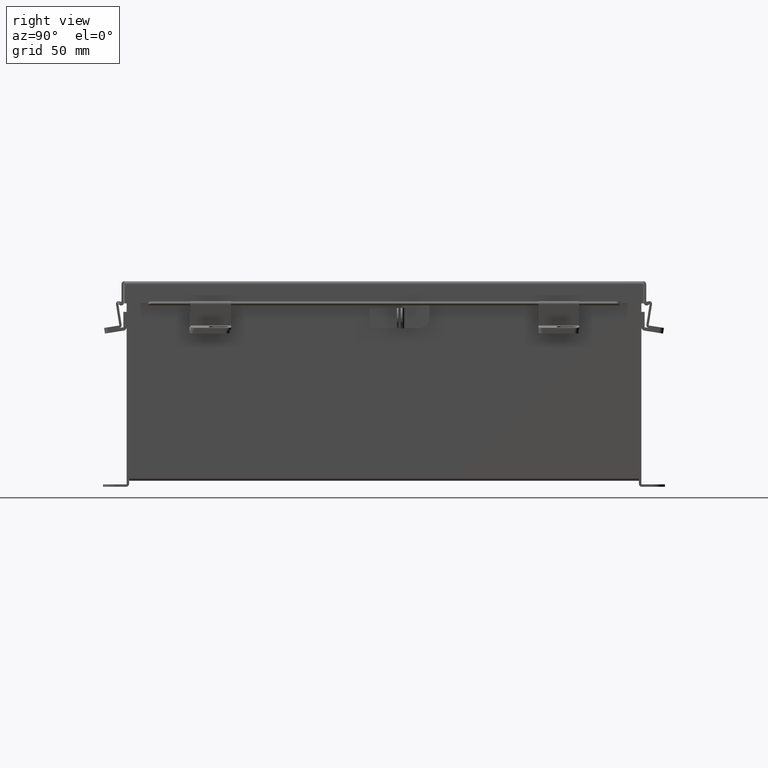
[diagram: clean part render]
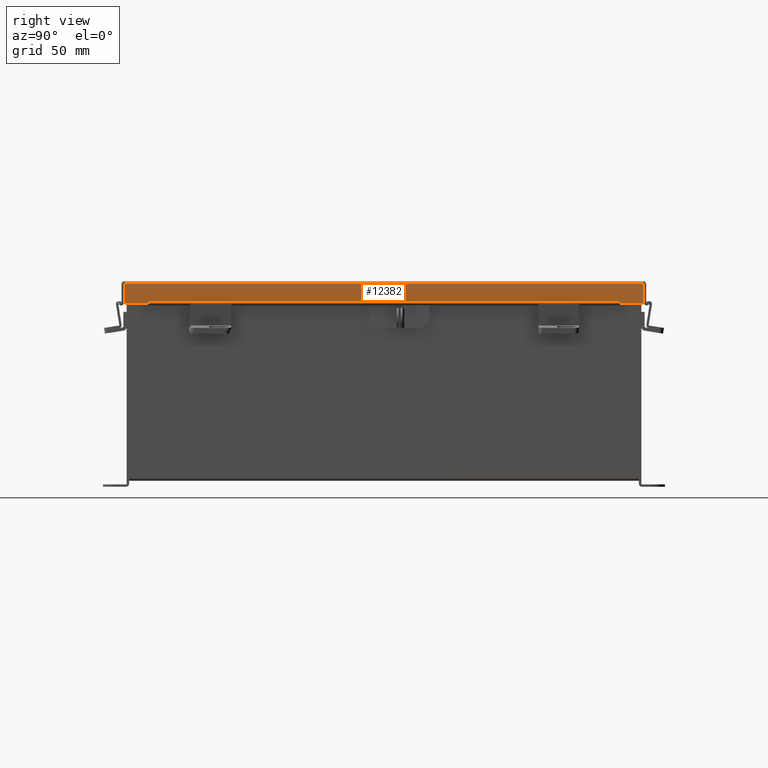
[diagram: same view with one face highlighted and labeled with its STEP entity id]
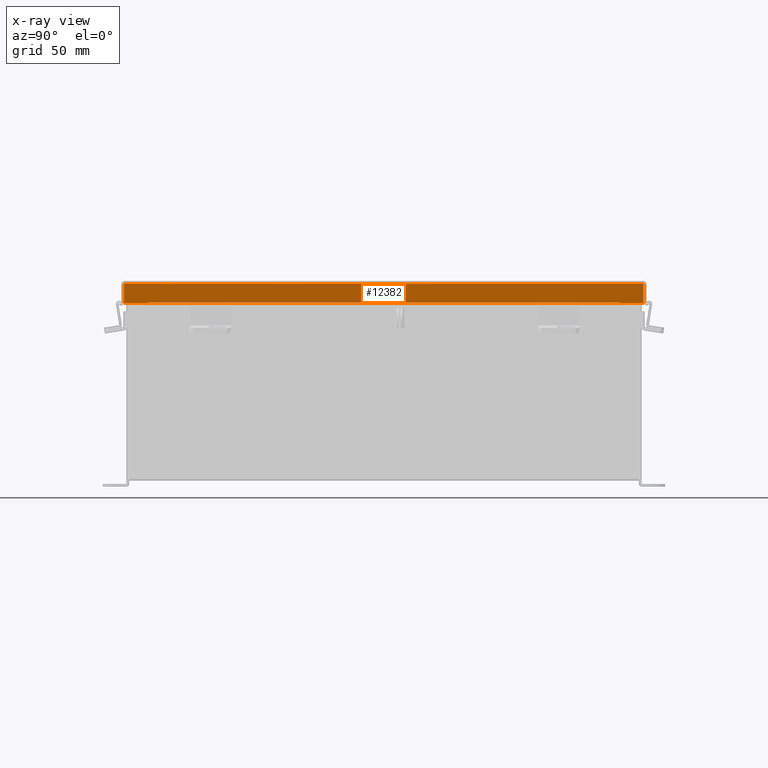
[diagram: x-ray of the same camera — body ghosted, the highlighted face saturated]
A machine part, right view. The second image highlights one B-rep face of the part: STEP entity #12382.
The next image is the same camera in x-ray: the body ghosted, the highlighted face saturated — about 0% of this face is hidden behind the body in this view.
In plain terms, the highlighted planar face has unit normal (-1, 0, -0).
Its self-contained STEP definition (entity closure, byte-faithful):
#30 = DIRECTION ( 'NONE',  ( -1.401985044024031900E-013, -7.009925220120140500E-014, 1.000000000000000000 ) ) ;
#142 = EDGE_CURVE ( 'NONE', #14829, #8402, #2742, .T. ) ;
#204 = VECTOR ( 'NONE', #19745, 39.37007874015748100 ) ;
#498 = DIRECTION ( 'NONE',  ( 2.102977566036114200E-013, 7.009925220120353800E-014, -1.000000000000000000 ) ) ;
#1012 = LINE ( 'NONE', #1569, #17073 ) ;
#1512 = DIRECTION ( 'NONE',  ( 3.569293475308537100E-015, -1.846427556282924000E-029, -1.000000000000000000 ) ) ;
#1561 = EDGE_LOOP ( 'NONE', ( #18886, #9244, #18182, #2228, #8137, #14394, #16594, #6960 ) ) ;
#1569 = CARTESIAN_POINT ( 'NONE',  ( -6.156250000000018700, 7.324478932188135600, 0.5967115427318782100 ) ) ;
#2228 = ORIENTED_EDGE ( 'NONE', *, *, #11501, .F. ) ;
#2433 = CARTESIAN_POINT ( 'NONE',  ( -6.156250000000017800, 8.156250000000000000, 0.01300000000000010700 ) ) ;
#2742 = LINE ( 'NONE', #5698, #9985 ) ;
#3506 = LINE ( 'NONE', #12464, #15381 ) ;
#3667 = VERTEX_POINT ( 'NONE', #6570 ) ;
#3714 = EDGE_CURVE ( 'NONE', #7657, #9536, #17834, .T. ) ;
#3901 = EDGE_CURVE ( 'NONE', #6940, #19017, #6659, .T. ) ;
#4126 = DIRECTION ( 'NONE',  ( -3.569293475308537100E-015, 1.846427556282924300E-029, 1.000000000000000000 ) ) ;
#4350 = EDGE_CURVE ( 'NONE', #3667, #10372, #3506, .T. ) ;
#4953 = FACE_OUTER_BOUND ( 'NONE', #1561, .T. ) ;
#5340 = CARTESIAN_POINT ( 'NONE',  ( -6.156250000000017800, 8.074478932188135600, 0.01300000000000010700 ) ) ;
#5698 = CARTESIAN_POINT ( 'NONE',  ( -6.156250000000017800, 8.074478932188135600, 0.0000000000000000000 ) ) ;
#5829 = VECTOR ( 'NONE', #11895, 39.37007874015748100 ) ;
#6570 = CARTESIAN_POINT ( 'NONE',  ( -6.156250000000019500, -7.324478932188133800, 0.5967115427318782100 ) ) ;
#6659 = LINE ( 'NONE', #13406, #14909 ) ;
#6940 = VERTEX_POINT ( 'NONE', #9403 ) ;
#6960 = ORIENTED_EDGE ( 'NONE', *, *, #8110, .F. ) ;
#7317 = CARTESIAN_POINT ( 'NONE',  ( -6.156250000000019500, 4.268512490100411300E-018, 0.6122999999999994000 ) ) ;
#7657 = VERTEX_POINT ( 'NONE', #9783 ) ;
#7726 = CARTESIAN_POINT ( 'NONE',  ( -6.156250000000019500, 7.324478932188135600, 0.5967115427318782100 ) ) ;
#8110 = EDGE_CURVE ( 'NONE', #9536, #3667, #1012, .T. ) ;
#8137 = ORIENTED_EDGE ( 'NONE', *, *, #3901, .T. ) ;
#8402 = VERTEX_POINT ( 'NONE', #13103 ) ;
#8470 = AXIS2_PLACEMENT_3D ( 'NONE', #9239, #10810, #1512 ) ;
#8611 = EDGE_CURVE ( 'NONE', #7657, #8402, #9931, .T. ) ;
#8675 = CARTESIAN_POINT ( 'NONE',  ( -6.156250000000019500, -8.074478932188135600, 0.6122999999999994000 ) ) ;
#8792 = DIRECTION ( 'NONE',  ( -3.569293475308537100E-015, 1.846427556282924300E-029, 1.000000000000000000 ) ) ;
#9239 = CARTESIAN_POINT ( 'NONE',  ( -6.156250000000017800, 0.0000000000000000000, -2.294752314677981200E-014 ) ) ;
#9244 = ORIENTED_EDGE ( 'NONE', *, *, #8611, .T. ) ;
#9403 = CARTESIAN_POINT ( 'NONE',  ( -6.156250000000017800, -8.074478932188135600, 0.01299999999999901400 ) ) ;
#9536 = VERTEX_POINT ( 'NONE', #7726 ) ;
#9783 = CARTESIAN_POINT ( 'NONE',  ( -6.156250000000019500, 7.324478932188134700, 0.6122999999999994000 ) ) ;
#9931 = LINE ( 'NONE', #16513, #5829 ) ;
#9985 = VECTOR ( 'NONE', #8792, 39.37007874015748100 ) ;
#10137 = DIRECTION ( 'NONE',  ( 2.916455381721308100E-030, 1.000000000000000000, 6.698784352282061800E-017 ) ) ;
#10372 = VERTEX_POINT ( 'NONE', #18821 ) ;
#10810 = DIRECTION ( 'NONE',  ( 1.000000000000000000, 3.392644796219358600E-030, 3.569293475308537100E-015 ) ) ;
#11362 = CARTESIAN_POINT ( 'NONE',  ( -6.156250000000022200, 7.324478932188134700, 0.6122999999999994000 ) ) ;
#11501 = EDGE_CURVE ( 'NONE', #6940, #14829, #14716, .T. ) ;
#11554 = VECTOR ( 'NONE', #10137, 39.37007874015748100 ) ;
#11895 = DIRECTION ( 'NONE',  ( 3.166671605124525800E-030, 1.000000000000000000, 1.853823127269377700E-029 ) ) ;
#12382 = ADVANCED_FACE ( 'NONE', ( #4953 ), #18593, .F. ) ;
#12464 = CARTESIAN_POINT ( 'NONE',  ( -6.156250000000018700, -7.324478932188133800, 0.5967115427318782100 ) ) ;
#13103 = CARTESIAN_POINT ( 'NONE',  ( -6.156250000000019500, 8.074478932188135600, 0.6122999999999994000 ) ) ;
#13406 = CARTESIAN_POINT ( 'NONE',  ( -6.156250000000017800, -8.074478932188135600, -2.294752314677981200E-014 ) ) ;
#13711 = VECTOR ( 'NONE', #498, 39.37007874015748100 ) ;
#13998 = DIRECTION ( 'NONE',  ( -3.166671605124525800E-030, -1.000000000000000000, -1.853823127269377700E-029 ) ) ;
#14394 = ORIENTED_EDGE ( 'NONE', *, *, #16300, .T. ) ;
#14716 = LINE ( 'NONE', #2433, #11554 ) ;
#14829 = VERTEX_POINT ( 'NONE', #5340 ) ;
#14909 = VECTOR ( 'NONE', #4126, 39.37007874015748100 ) ;
#15381 = VECTOR ( 'NONE', #30, 39.37007874015748100 ) ;
#16300 = EDGE_CURVE ( 'NONE', #19017, #10372, #16725, .T. ) ;
#16513 = CARTESIAN_POINT ( 'NONE',  ( -6.156250000000019500, 4.268512490100411300E-018, 0.6122999999999994000 ) ) ;
#16594 = ORIENTED_EDGE ( 'NONE', *, *, #4350, .F. ) ;
#16725 = LINE ( 'NONE', #7317, #204 ) ;
#17073 = VECTOR ( 'NONE', #13998, 39.37007874015748100 ) ;
#17834 = LINE ( 'NONE', #11362, #13711 ) ;
#18182 = ORIENTED_EDGE ( 'NONE', *, *, #142, .F. ) ;
#18593 = PLANE ( 'NONE',  #8470 ) ;
#18821 = CARTESIAN_POINT ( 'NONE',  ( -6.156250000000019500, -7.324478932188133800, 0.6122999999999994000 ) ) ;
#18886 = ORIENTED_EDGE ( 'NONE', *, *, #3714, .F. ) ;
#19017 = VERTEX_POINT ( 'NONE', #8675 ) ;
#19745 = DIRECTION ( 'NONE',  ( 3.166671605124525800E-030, 1.000000000000000000, 1.853823127269377700E-029 ) ) ;